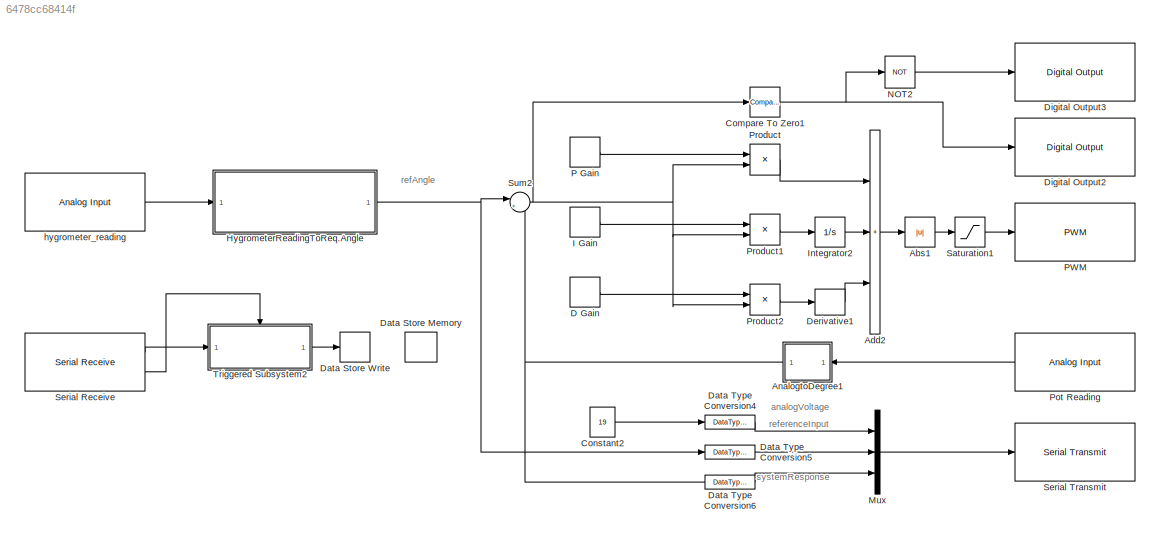
MODEL slx_6478cc68414f
KIND model
CONFIG AbsTol = auto
CONFIG EnableMultiTasking = on
CONFIG FixedStep = auto
CONFIG MaxStep = auto
CONFIG MinStep = auto
CONFIG RelTol = 1e-3
CONFIG SampleTimeConstraint = Unconstrained
CONFIG SolverName = FixedStepAuto
CONFIG StartTime = 0.0
CONFIG StopTime = inf
BLOCK [Abs] Abs1
  SaturateOnIntegerOverflow = off
BLOCK [Sum] Add2
  IconShape = rectangular
  Inputs = +++
  Ports = [3, 1]
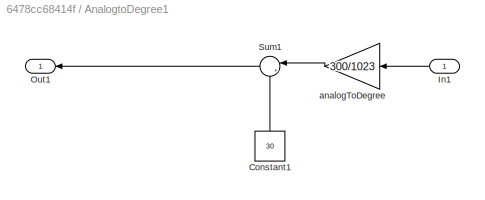
BLOCK [SubSystem] AnalogtoDegree1
  Ports = [1, 1]
  RequestExecContextInheritance = off
BLOCK [Constant] AnalogtoDegree1/Constant1
  NameLocation = right
  Value = 30
BLOCK [Inport] AnalogtoDegree1/In1
BLOCK [Outport] AnalogtoDegree1/Out1
BLOCK [Sum] AnalogtoDegree1/Sum1
  Inputs = |++
  NameLocation = top
  Ports = [2, 1]
BLOCK [Gain] AnalogtoDegree1/analogToDegree
  Gain = 300/1023
BLOCK [Reference] Compare To Zero1  REF=simulink/Logic and Bit
Operations/Compare
To Zero
  Ports = [1, 1]
  SourceBlock = simulink/Logic and Bit\nOperations/Compare\nTo Zero
  SourceProductBaseCode = SL
  SourceType = Compare To Zero
BLOCK [Constant] Constant2
  Value = 19
BLOCK [DataStoreRead] D Gain
  DataStoreElements = PID(3)
  DataStoreName = PID
  IndexOptions = Index vector (dialog)
  Indices = 1
  OutputSizes = 1
  Ports = [0, 1]
BLOCK [DataStoreMemory] Data Store Memory 
  DataStoreName = PID
  InitialValue = [0 0 0]
  ReadBeforeWriteMsg = warning
  ShowAdditionalParam = off
  WriteAfterReadMsg = warning
  WriteAfterWriteMsg = warning
BLOCK [DataStoreWrite] Data Store Write 
  DataStoreElements = PID(:)
  DataStoreName = PID
  IndexOptions = Index vector (dialog)
  Indices = 1
  OutputSizes = 1
  Ports = [1]
BLOCK [DataTypeConversion] Data Type Conversion4
  OutDataTypeStr = int16
  RndMeth = Floor
  SaturateOnIntegerOverflow = off
BLOCK [DataTypeConversion] Data Type Conversion5
  OutDataTypeStr = int16
  RndMeth = Floor
  SaturateOnIntegerOverflow = off
BLOCK [DataTypeConversion] Data Type Conversion6
  OutDataTypeStr = int16
  RndMeth = Floor
  SaturateOnIntegerOverflow = off
BLOCK [Derivative] Derivative1
BLOCK [Reference] Digital Output2  REF=arduinolib/Digital Output
  Ports = [1]
  SourceBlock = arduinolib/Digital Output
  SourceProductBaseCode = ARDUINO
  SourceType = Arduino Digital Output
BLOCK [Reference] Digital Output3  REF=arduinolib/Digital Output
  Ports = [1]
  SourceBlock = arduinolib/Digital Output
  SourceProductBaseCode = ARDUINO
  SourceType = Arduino Digital Output
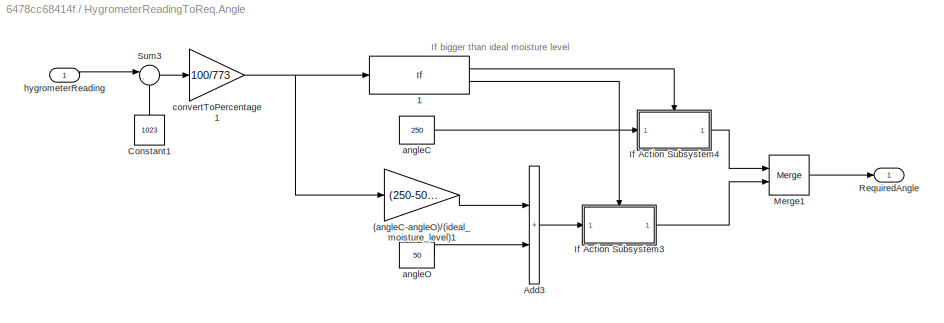
BLOCK [SubSystem] HygrometerReadingToReq.Angle
  Ports = [1, 1]
  RequestExecContextInheritance = off
BLOCK [If] HygrometerReadingToReq.Angle/ 1
  IfExpression = u1 > 80
  Ports = [1, 2]
BLOCK [Gain] HygrometerReadingToReq.Angle/(angleC-angleO)//(ideal_moisture_level)1
  Gain = (250-50)/80
  OutDataTypeStr = uint8
BLOCK [Sum] HygrometerReadingToReq.Angle/Add3
  IconShape = rectangular
  Ports = [2, 1]
BLOCK [Constant] HygrometerReadingToReq.Angle/Constant1
  NameLocation = right
  Value = 1023
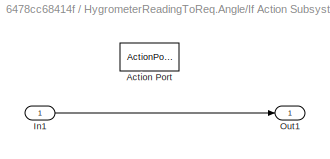
BLOCK [SubSystem] HygrometerReadingToReq.Angle/If Action Subsystem3
  Ports = [1, 1, 0, 0, 0, 0, 0, 1]
  RequestExecContextInheritance = off
  TreatAsAtomicUnit = on
BLOCK [ActionPort] HygrometerReadingToReq.Angle/If Action Subsystem3/Action Port
  ActionPortLabel = else
BLOCK [Inport] HygrometerReadingToReq.Angle/If Action Subsystem3/In1
BLOCK [Outport] HygrometerReadingToReq.Angle/If Action Subsystem3/Out1
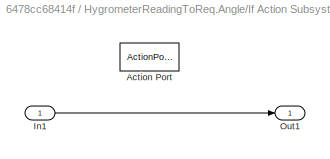
BLOCK [SubSystem] HygrometerReadingToReq.Angle/If Action Subsystem4
  Ports = [1, 1, 0, 0, 0, 0, 0, 1]
  RequestExecContextInheritance = off
  TreatAsAtomicUnit = on
BLOCK [ActionPort] HygrometerReadingToReq.Angle/If Action Subsystem4/Action Port
  ActionPortLabel = if(u1 > 80)
BLOCK [Inport] HygrometerReadingToReq.Angle/If Action Subsystem4/In1
BLOCK [Outport] HygrometerReadingToReq.Angle/If Action Subsystem4/Out1
BLOCK [Merge] HygrometerReadingToReq.Angle/Merge1
  Ports = [2, 1]
BLOCK [Outport] HygrometerReadingToReq.Angle/RequiredAngle
BLOCK [Sum] HygrometerReadingToReq.Angle/Sum3
  Inputs = |-+
  Ports = [2, 1]
BLOCK [Constant] HygrometerReadingToReq.Angle/angleC
  Value = 250
BLOCK [Constant] HygrometerReadingToReq.Angle/angleO
  Value = 50
BLOCK [Gain] HygrometerReadingToReq.Angle/convertToPercentage1
  Gain = 100/773
  OutDataTypeStr = uint16
BLOCK [Inport] HygrometerReadingToReq.Angle/hygrometerReading
BLOCK [DataStoreRead] I Gain
  DataStoreElements = PID(2)
  DataStoreName = PID
  IndexOptions = Index vector (dialog)
  Indices = 1
  OutputSizes = 1
  Ports = [0, 1]
BLOCK [Integrator] Integrator2
  Ports = [1, 1]
BLOCK [Mux] Mux
  DisplayOption = bar
  Inputs = 3
  Ports = [3, 1]
BLOCK [Logic] NOT2
  AllPortsSameDT = off
  IconShape = distinctive
  Operator = NOT
  OutDataTypeStr = boolean
  Ports = [1, 1]
BLOCK [DataStoreRead] P Gain
  DataStoreElements = PID(1)
  DataStoreName = PID
  IndexOptions = Index vector (dialog)
  Indices = 1
  OutputSizes = 1
  Ports = [0, 1]
BLOCK [Reference] PWM   REF=arduinolib/PWM
  Ports = [1]
  SourceBlock = arduinolib/PWM
  SourceProductBaseCode = ARDUINO
  SourceType = Arduino PWM
BLOCK [Reference] Pot Reading   REF=arduinolib/Analog Input
  Ports = [0, 1]
  SourceBlock = arduinolib/Analog Input
  SourceProductBaseCode = ARDUINO
  SourceType = Arduino Analog Input
BLOCK [Product] Product
  Ports = [2, 1]
BLOCK [Product] Product1
  Ports = [2, 1]
BLOCK [Product] Product2
  Ports = [2, 1]
BLOCK [Saturate] Saturation1
  LowerLimit = 0
  UpperLimit = 80
BLOCK [Reference] Serial Receive   REF=arduinolib/Serial Receive
  Ports = [0, 2]
  SourceBlock = arduinolib/Serial Receive
  SourceProductBaseCode = ARDUINO
  SourceType = Arduino Serial Receive
BLOCK [Reference] Serial Transmit   REF=arduinolib/Serial Transmit
  Ports = [1]
  SourceBlock = arduinolib/Serial Transmit
  SourceProductBaseCode = ARDUINO
  SourceType = Arduino Serial Transmit
BLOCK [Sum] Sum2
  Inputs = |+-
  Ports = [2, 1]
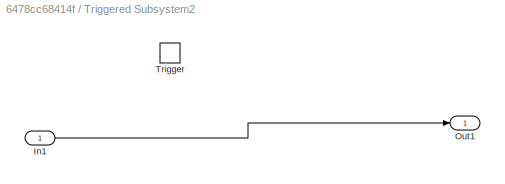
BLOCK [SubSystem] Triggered Subsystem2
  Ports = [1, 1, 0, 1]
  RequestExecContextInheritance = off
  TreatAsAtomicUnit = on
BLOCK [Inport] Triggered Subsystem2/In1
BLOCK [Outport] Triggered Subsystem2/Out1
BLOCK [TriggerPort] Triggered Subsystem2/Trigger
  Ports = []
  StatesWhenEnabling = held
  VariantControl = (inherit)
BLOCK [Reference] hygrometer_reading  REF=arduinolib/Analog Input
  Ports = [0, 1]
  SourceBlock = arduinolib/Analog Input
  SourceProductBaseCode = ARDUINO
  SourceType = Arduino Analog Input
ANNOTATION (root): analogVoltage
ANNOTATION (root): refAngle
ANNOTATION (root): referenceInput
ANNOTATION (root): systemResponse
ANNOTATION HygrometerReadingToReq.Angle: If bigger than ideal moisture level
LINE Abs1:1 -> Saturation1:1
LINE Add2:1 -> Abs1:1
LINE AnalogtoDegree1/Constant1:1 -> AnalogtoDegree1/Sum1:2
LINE AnalogtoDegree1/In1:1 -> AnalogtoDegree1/analogToDegree:1
LINE AnalogtoDegree1/Sum1:1 -> AnalogtoDegree1/Out1:1
LINE AnalogtoDegree1/analogToDegree:1 -> AnalogtoDegree1/Sum1:1
NET AnalogtoDegree1:1 -> Data Type Conversion6:1, Sum2:2
NET Compare To Zero1:1 -> Digital Output2:1, NOT2:1
LINE Constant2:1 -> Data Type Conversion4:1
LINE D Gain:1 -> Product2:1
LINE Data Type Conversion4:1 -> Mux:1
LINE Data Type Conversion5:1 -> Mux:2
LINE Data Type Conversion6:1 -> Mux:3
LINE Derivative1:1 -> Add2:3
LINE HygrometerReadingToReq.Angle/ 1:1 -> HygrometerReadingToReq.Angle/If Action Subsystem4:ifaction
LINE HygrometerReadingToReq.Angle/ 1:2 -> HygrometerReadingToReq.Angle/If Action Subsystem3:ifaction
LINE HygrometerReadingToReq.Angle/(angleC-angleO)//(ideal_moisture_level)1:1 -> HygrometerReadingToReq.Angle/Add3:1
LINE HygrometerReadingToReq.Angle/Add3:1 -> HygrometerReadingToReq.Angle/If Action Subsystem3:1
LINE HygrometerReadingToReq.Angle/Constant1:1 -> HygrometerReadingToReq.Angle/Sum3:2
LINE HygrometerReadingToReq.Angle/If Action Subsystem3/In1:1 -> HygrometerReadingToReq.Angle/If Action Subsystem3/Out1:1
LINE HygrometerReadingToReq.Angle/If Action Subsystem3:1 -> HygrometerReadingToReq.Angle/Merge1:2
LINE HygrometerReadingToReq.Angle/If Action Subsystem4/In1:1 -> HygrometerReadingToReq.Angle/If Action Subsystem4/Out1:1
LINE HygrometerReadingToReq.Angle/If Action Subsystem4:1 -> HygrometerReadingToReq.Angle/Merge1:1
LINE HygrometerReadingToReq.Angle/Merge1:1 -> HygrometerReadingToReq.Angle/RequiredAngle:1
LINE HygrometerReadingToReq.Angle/Sum3:1 -> HygrometerReadingToReq.Angle/convertToPercentage1:1
LINE HygrometerReadingToReq.Angle/angleC:1 -> HygrometerReadingToReq.Angle/If Action Subsystem4:1
LINE HygrometerReadingToReq.Angle/angleO:1 -> HygrometerReadingToReq.Angle/Add3:2
NET HygrometerReadingToReq.Angle/convertToPercentage1:1 -> HygrometerReadingToReq.Angle/ 1:1, HygrometerReadingToReq.Angle/(angleC-angleO)//(ideal_moisture_level)1:1
LINE HygrometerReadingToReq.Angle/hygrometerReading:1 -> HygrometerReadingToReq.Angle/Sum3:1
NET HygrometerReadingToReq.Angle:1 -> Data Type Conversion5:1, Sum2:1
LINE I Gain:1 -> Product1:1
LINE Integrator2:1 -> Add2:2
LINE Mux:1 -> Serial Transmit :1
LINE NOT2:1 -> Digital Output3:1
LINE P Gain:1 -> Product:1
LINE Pot Reading :1 -> AnalogtoDegree1:1
LINE Product1:1 -> Integrator2:1
LINE Product2:1 -> Derivative1:1
LINE Product:1 -> Add2:1
LINE Saturation1:1 -> PWM :1
LINE Serial Receive :1 -> Triggered Subsystem2:1
LINE Serial Receive :2 -> Triggered Subsystem2:trigger
NET Sum2:1 -> Compare To Zero1:1, Product1:2, Product2:2, Product:2
LINE Triggered Subsystem2/In1:1 -> Triggered Subsystem2/Out1:1
LINE Triggered Subsystem2:1 -> Data Store Write :1
LINE hygrometer_reading:1 -> HygrometerReadingToReq.Angle:1
note: NET lines group one-source signal fan-out (src -> all destinations, sorted); 1:1 wires keep LINE
